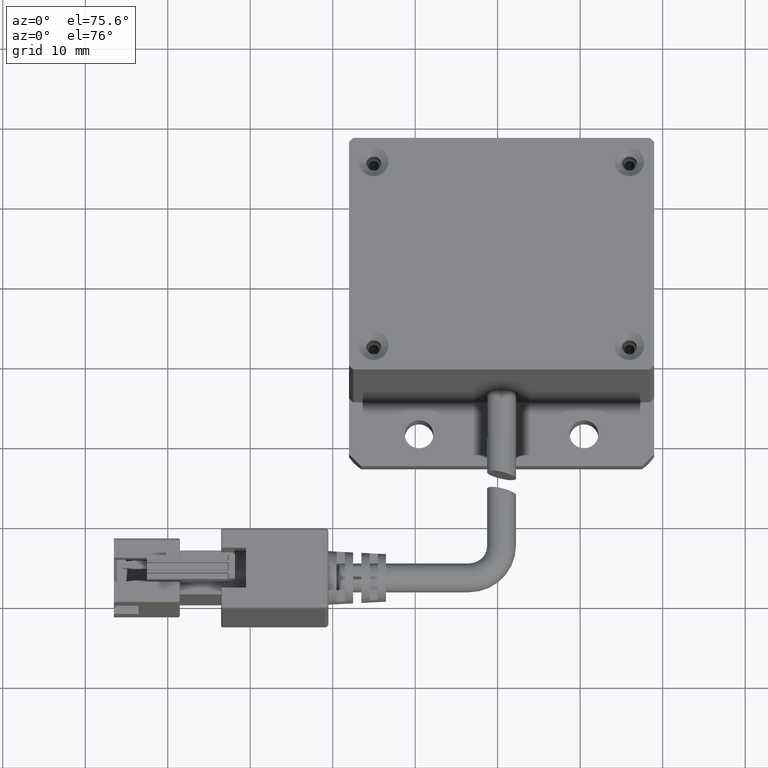
[diagram: clean part render]
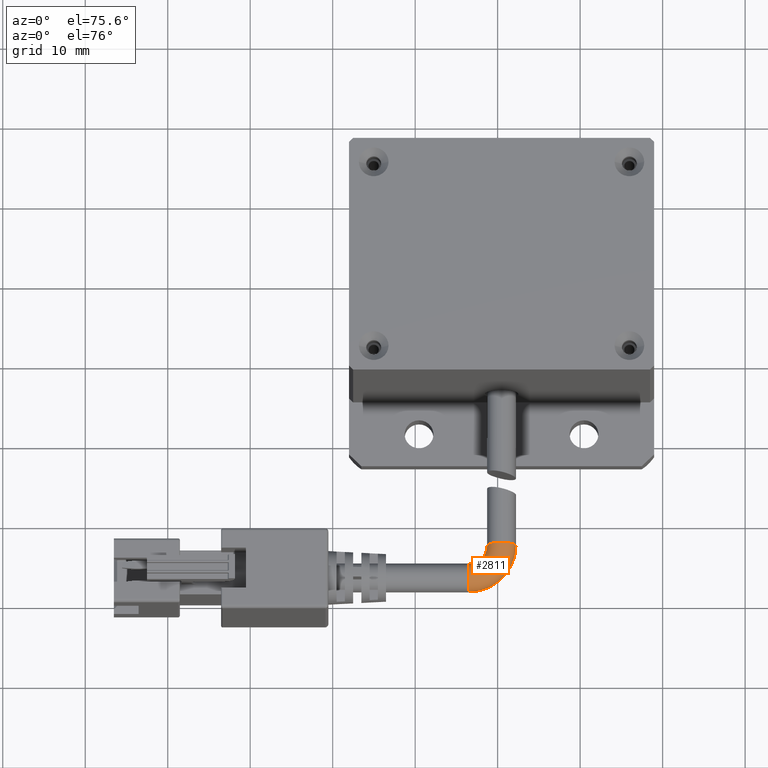
[diagram: same view with one face highlighted and labeled with its STEP entity id]
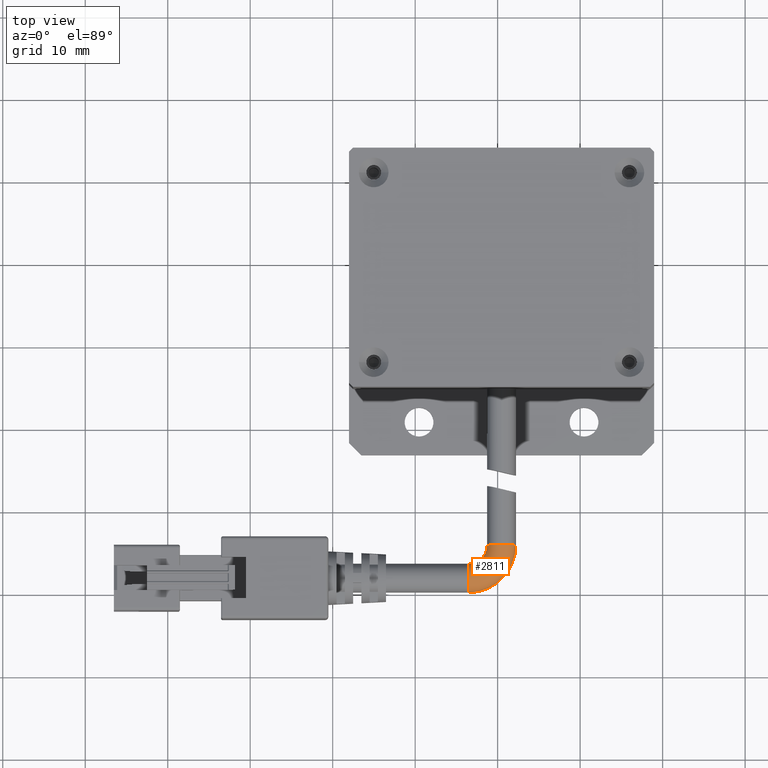
[diagram: same view with one face highlighted and labeled with its STEP entity id]
A machine part, auxiliary view. The second image highlights one B-rep face of the part: STEP entity #2811.
A second angle (top view) of the same face is appended — the face is thin or edge-on in the first view.
In plain terms, the highlighted toroidal blend (fillet) surface has major radius 4 mm and minor (blend) radius 1.75 mm.
Its self-contained STEP definition (entity closure, byte-faithful):
#20 = CARTESIAN_POINT ( 'NONE',  ( -3.469446951953615200E-016, -22.75000000000000000, -4.000000000000000000 ) ) ;
#317 = EDGE_CURVE ( 'NONE', #10605, #5488, #6824, .T. ) ;
#325 = EDGE_LOOP ( 'NONE', ( #8263, #986, #5718, #3591, #8073 ) ) ;
#334 = AXIS2_PLACEMENT_3D ( 'NONE', #3751, #10539, #5459 ) ;
#652 = FACE_OUTER_BOUND ( 'NONE', #325, .T. ) ;
#863 = AXIS2_PLACEMENT_3D ( 'NONE', #4105, #10024, #4945 ) ;
#986 = ORIENTED_EDGE ( 'NONE', *, *, #1466, .T. ) ;
#1466 = EDGE_CURVE ( 'NONE', #5488, #4935, #7210, .T. ) ;
#1619 = DIRECTION ( 'NONE',  ( 1.000000000000000000, 0.0000000000000000000, -8.673617379884036700E-017 ) ) ;
#1659 = CARTESIAN_POINT ( 'NONE',  ( -3.469446951953615200E-016, -21.00000000000000000, -4.000000000000000000 ) ) ;
#2324 = AXIS2_PLACEMENT_3D ( 'NONE', #1659, #7577, #2507 ) ;
#2507 = DIRECTION ( 'NONE',  ( 8.673617379884031800E-017, 1.000000000000000000, 0.0000000000000000000 ) ) ;
#2671 = TOROIDAL_SURFACE ( 'NONE', #334, 4.000000000000000000, 1.750000000000000000 ) ;
#2726 = CARTESIAN_POINT ( 'NONE',  ( 1.749999999999999800, -21.00000000000000000, -4.000000000000000000 ) ) ;
#2811 = ADVANCED_FACE ( 'NONE', ( #652 ), #2671, .T. ) ;
#2862 = CIRCLE ( 'NONE', #863, 1.750000000000001600 ) ;
#3396 = CIRCLE ( 'NONE', #2324, 1.750000000000001600 ) ;
#3591 = ORIENTED_EDGE ( 'NONE', *, *, #6592, .F. ) ;
#3632 = CARTESIAN_POINT ( 'NONE',  ( -3.186635328391150800E-032, -17.00000000000000000, -3.673940397442059400E-016 ) ) ;
#3723 = EDGE_CURVE ( 'NONE', #6364, #4935, #2862, .T. ) ;
#3751 = CARTESIAN_POINT ( 'NONE',  ( -3.469446951953615200E-016, -17.00000000000000000, -4.000000000000000000 ) ) ;
#4105 = CARTESIAN_POINT ( 'NONE',  ( -3.469446951953615200E-016, -21.00000000000000000, -4.000000000000000000 ) ) ;
#4179 = CARTESIAN_POINT ( 'NONE',  ( -5.612578850461483200E-016, -17.00000000000000000, -4.000000000000000000 ) ) ;
#4491 = DIRECTION ( 'NONE',  ( 0.0000000000000000000, 0.0000000000000000000, -1.000000000000000000 ) ) ;
#4900 = CARTESIAN_POINT ( 'NONE',  ( 2.143131898507868500E-016, -17.00000000000000000, -1.750000000000000400 ) ) ;
#4935 = VERTEX_POINT ( 'NONE', #20 ) ;
#4945 = DIRECTION ( 'NONE',  ( 8.673617379884031800E-017, 1.000000000000000000, 0.0000000000000000000 ) ) ;
#5031 = DIRECTION ( 'NONE',  ( -8.673617379884036700E-017, 0.0000000000000000000, -1.000000000000000000 ) ) ;
#5459 = DIRECTION ( 'NONE',  ( -8.673617379884036700E-017, 0.0000000000000000000, -1.000000000000000000 ) ) ;
#5488 = VERTEX_POINT ( 'NONE', #9961 ) ;
#5718 = ORIENTED_EDGE ( 'NONE', *, *, #3723, .F. ) ;
#6307 = CIRCLE ( 'NONE', #9856, 2.250000000000000400 ) ;
#6364 = VERTEX_POINT ( 'NONE', #2726 ) ;
#6592 = EDGE_CURVE ( 'NONE', #7558, #6364, #3396, .T. ) ;
#6697 = CARTESIAN_POINT ( 'NONE',  ( -3.469446951953615200E-016, -17.00000000000000000, -4.000000000000000000 ) ) ;
#6824 = CIRCLE ( 'NONE', #10186, 1.750000000000000000 ) ;
#7189 = CARTESIAN_POINT ( 'NONE',  ( -4.636796895224530200E-016, -19.25000000000000000, -4.000000000000000000 ) ) ;
#7210 = CIRCLE ( 'NONE', #8974, 5.750000000000000000 ) ;
#7558 = VERTEX_POINT ( 'NONE', #7189 ) ;
#7560 = DIRECTION ( 'NONE',  ( -8.673617379884036700E-017, 0.0000000000000000000, -1.000000000000000000 ) ) ;
#7577 = DIRECTION ( 'NONE',  ( -8.673617379884036700E-017, 1.608122649676636600E-016, -1.000000000000000000 ) ) ;
#8073 = ORIENTED_EDGE ( 'NONE', *, *, #10643, .F. ) ;
#8263 = ORIENTED_EDGE ( 'NONE', *, *, #317, .T. ) ;
#8974 = AXIS2_PLACEMENT_3D ( 'NONE', #6697, #1619, #7560 ) ;
#9545 = DIRECTION ( 'NONE',  ( 0.0000000000000000000, -1.000000000000000000, 0.0000000000000000000 ) ) ;
#9856 = AXIS2_PLACEMENT_3D ( 'NONE', #4179, #10095, #5031 ) ;
#9961 = CARTESIAN_POINT ( 'NONE',  ( -5.345529420184391300E-048, -17.00000000000000000, 1.749999999999999600 ) ) ;
#10024 = DIRECTION ( 'NONE',  ( -8.673617379884036700E-017, 1.608122649676636600E-016, -1.000000000000000000 ) ) ;
#10095 = DIRECTION ( 'NONE',  ( 1.000000000000000000, 0.0000000000000000000, -8.673617379884036700E-017 ) ) ;
#10186 = AXIS2_PLACEMENT_3D ( 'NONE', #3632, #9545, #4491 ) ;
#10539 = DIRECTION ( 'NONE',  ( 1.000000000000000000, 0.0000000000000000000, -8.673617379884036700E-017 ) ) ;
#10605 = VERTEX_POINT ( 'NONE', #4900 ) ;
#10643 = EDGE_CURVE ( 'NONE', #10605, #7558, #6307, .T. ) ;